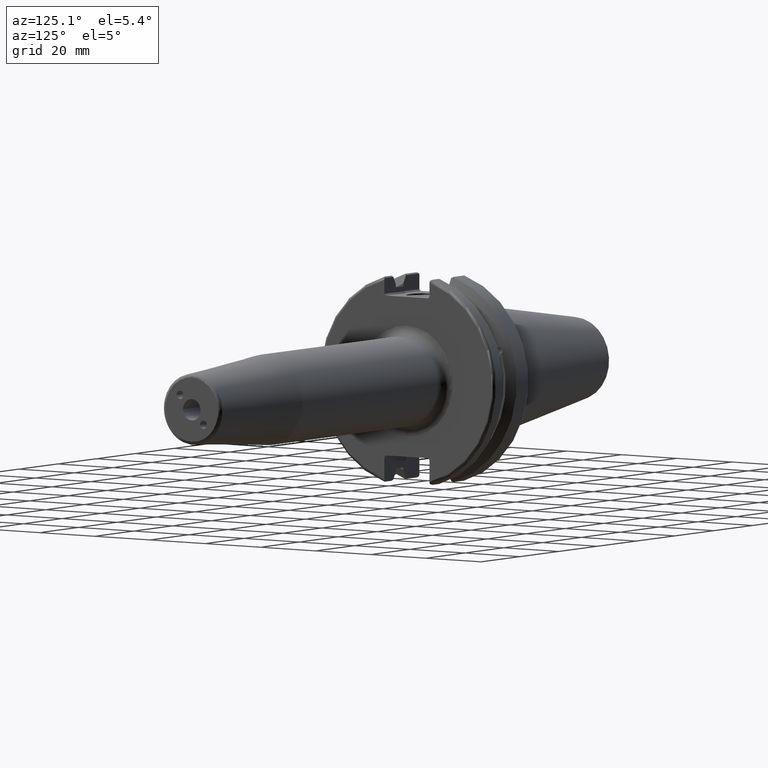
[diagram: clean part render]
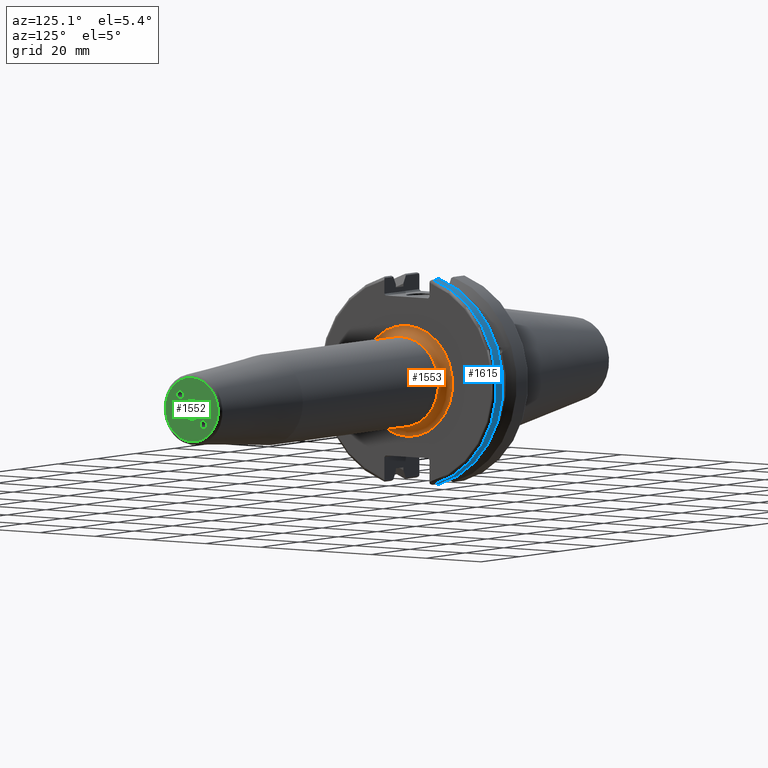
[diagram: same view with three faces highlighted in distinct colors, each labeled with its STEP entity id]
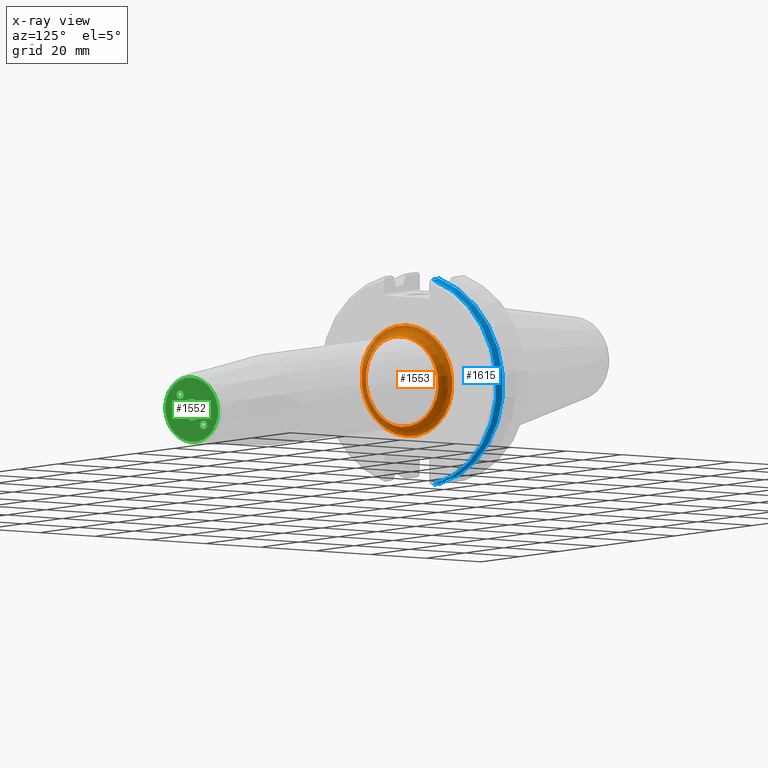
[diagram: x-ray of the same camera — body ghosted, the three highlighted faces saturated]
A machine part, auxiliary view with three faces highlighted in distinct colors.
The next image is the same camera in x-ray (body ghosted, the three faces saturated) — at least one of them is partly hidden behind the body in this view.
Their STEP definitions:

[orange] entity #1553 — the highlighted toroidal blend (fillet) surface has major radius 16.5 mm and minor (blend) radius 3 mm.
#120=TOROIDAL_SURFACE('',#1677,16.5,3.);
#184=FACE_OUTER_BOUND('',#278,.T.);
#278=EDGE_LOOP('',(#1077,#1078,#1079,#1080,#1081));
#581=CIRCLE('',#1678,13.5);
#582=CIRCLE('',#1679,3.);
#583=CIRCLE('',#1680,16.5);
#584=CIRCLE('',#1681,13.5);
#659=VERTEX_POINT('',#2353);
#660=VERTEX_POINT('',#2354);
#661=VERTEX_POINT('',#2356);
#823=EDGE_CURVE('',#659,#660,#581,.T.);
#824=EDGE_CURVE('',#660,#661,#582,.T.);
#825=EDGE_CURVE('',#661,#661,#583,.T.);
#826=EDGE_CURVE('',#660,#659,#584,.T.);
#1077=ORIENTED_EDGE('',*,*,#823,.T.);
#1078=ORIENTED_EDGE('',*,*,#824,.T.);
#1079=ORIENTED_EDGE('',*,*,#825,.T.);
#1080=ORIENTED_EDGE('',*,*,#824,.F.);
#1081=ORIENTED_EDGE('',*,*,#826,.T.);
#1553=ADVANCED_FACE('',(#184),#120,.F.);
#1677=AXIS2_PLACEMENT_3D('',#2352,#1887,#1888);
#1678=AXIS2_PLACEMENT_3D('',#2355,#1889,#1890);
#1679=AXIS2_PLACEMENT_3D('',#2357,#1891,#1892);
#1680=AXIS2_PLACEMENT_3D('',#2358,#1893,#1894);
#1681=AXIS2_PLACEMENT_3D('',#2359,#1895,#1896);
#1887=DIRECTION('center_axis',(-1.,0.,0.));
#1888=DIRECTION('ref_axis',(0.,0.,1.));
#1889=DIRECTION('center_axis',(-1.,0.,0.));
#1890=DIRECTION('ref_axis',(0.,-1.,-1.22464679914735E-16));
#1891=DIRECTION('center_axis',(0.,-1.,1.22464679914735E-16));
#1892=DIRECTION('ref_axis',(0.,-1.22464679914735E-16,-1.));
#1893=DIRECTION('center_axis',(1.,0.,0.));
#1894=DIRECTION('ref_axis',(0.,-1.,-1.22464679914735E-16));
#1895=DIRECTION('center_axis',(-1.,0.,0.));
#1896=DIRECTION('ref_axis',(0.,-1.,-1.22464679914735E-16));
#2352=CARTESIAN_POINT('Origin',(22.05,0.,0.));
#2353=CARTESIAN_POINT('',(22.05,-13.5,-1.65327317884893E-15));
#2354=CARTESIAN_POINT('',(22.05,-1.65327317884893E-15,-13.5));
#2355=CARTESIAN_POINT('Origin',(22.05,0.,0.));
#2356=CARTESIAN_POINT('',(19.05,-2.02066721859313E-15,-16.5));
#2357=CARTESIAN_POINT('Origin',(22.05,-2.02066721859313E-15,-16.5));
#2358=CARTESIAN_POINT('Origin',(19.05,0.,0.));
#2359=CARTESIAN_POINT('Origin',(22.05,0.,0.));

[blue] entity #1615 — the highlighted cylindrical surface (partial cylindrical patch) has radius 31.75 mm, axis along (1, 0, 0).
#170=CYLINDRICAL_SURFACE('',#1807,31.75);
#246=FACE_OUTER_BOUND('',#352,.T.);
#352=EDGE_LOOP('',(#1435,#1436,#1437,#1438));
#427=LINE('',#2830,#525);
#467=LINE('',#3060,#565);
#525=VECTOR('',#2118,10.);
#565=VECTOR('',#2232,10.);
#617=CIRCLE('',#1768,31.75);
#631=CIRCLE('',#1808,31.75);
#750=VERTEX_POINT('',#2804);
#751=VERTEX_POINT('',#2813);
#753=VERTEX_POINT('',#2826);
#798=VERTEX_POINT('',#3059);
#946=EDGE_CURVE('',#750,#751,#617,.T.);
#950=EDGE_CURVE('',#753,#750,#427,.T.);
#1023=EDGE_CURVE('',#751,#798,#467,.T.);
#1025=EDGE_CURVE('',#753,#798,#631,.T.);
#1435=ORIENTED_EDGE('',*,*,#946,.F.);
#1436=ORIENTED_EDGE('',*,*,#950,.F.);
#1437=ORIENTED_EDGE('',*,*,#1025,.T.);
#1438=ORIENTED_EDGE('',*,*,#1023,.F.);
#1615=ADVANCED_FACE('',(#246),#170,.T.);
#1768=AXIS2_PLACEMENT_3D('',#2814,#2113,#2114);
#1807=AXIS2_PLACEMENT_3D('',#3064,#2233,#2234);
#1808=AXIS2_PLACEMENT_3D('',#3065,#2235,#2236);
#2113=DIRECTION('center_axis',(1.,0.,0.));
#2114=DIRECTION('ref_axis',(0.,1.,-6.12323399573676E-17));
#2118=DIRECTION('',(1.,0.,0.));
#2232=DIRECTION('',(-1.,0.,0.));
#2233=DIRECTION('center_axis',(1.,0.,0.));
#2234=DIRECTION('ref_axis',(0.,1.,0.));
#2235=DIRECTION('center_axis',(1.,0.,0.));
#2236=DIRECTION('ref_axis',(0.,0.,-1.));
#2804=CARTESIAN_POINT('',(18.05,8.67204822802685,-30.5427254764662));
#2813=CARTESIAN_POINT('',(18.05,8.67204822802685,30.5427254764662));
#2814=CARTESIAN_POINT('Origin',(18.05,0.,0.));
#2826=CARTESIAN_POINT('',(14.7021667690756,8.67204822802685,-30.5427254764662));
#2830=CARTESIAN_POINT('',(16.8760833845378,8.67204822802685,-30.5427254764662));
#3059=CARTESIAN_POINT('',(14.7021667690756,8.67204822802685,30.5427254764662));
#3060=CARTESIAN_POINT('',(16.8760833845378,8.67204822802685,30.5427254764662));
#3064=CARTESIAN_POINT('Origin',(16.8760833845378,0.,0.));
#3065=CARTESIAN_POINT('Origin',(14.7021667690756,0.,0.));

[green] entity #1552 — the highlighted planar face has unit normal (1, 0, 0).
#63=FACE_BOUND('',#275,.T.);
#64=FACE_BOUND('',#276,.T.);
#65=FACE_BOUND('',#277,.T.);
#81=PLANE('',#1675);
#127=ELLIPSE('',#1663,1.2302494347154,1.2295);
#128=ELLIPSE('',#1667,1.2302494347154,1.2295);
#183=FACE_OUTER_BOUND('',#274,.T.);
#274=EDGE_LOOP('',(#1073));
#275=EDGE_LOOP('',(#1074));
#276=EDGE_LOOP('',(#1075));
#277=EDGE_LOOP('',(#1076));
#575=CIRCLE('',#1669,9.57560950834179);
#580=CIRCLE('',#1676,3.175);
#650=VERTEX_POINT('',#2325);
#653=VERTEX_POINT('',#2334);
#654=VERTEX_POINT('',#2338);
#658=VERTEX_POINT('',#2350);
#810=EDGE_CURVE('',#650,#650,#127,.T.);
#814=EDGE_CURVE('',#653,#653,#128,.T.);
#816=EDGE_CURVE('',#654,#654,#575,.T.);
#822=EDGE_CURVE('',#658,#658,#580,.T.);
#1073=ORIENTED_EDGE('',*,*,#816,.F.);
#1074=ORIENTED_EDGE('',*,*,#810,.T.);
#1075=ORIENTED_EDGE('',*,*,#814,.T.);
#1076=ORIENTED_EDGE('',*,*,#822,.F.);
#1552=ADVANCED_FACE('',(#183,#63,#64,#65),#81,.T.);
#1663=AXIS2_PLACEMENT_3D('',#2326,#1855,#1856);
#1667=AXIS2_PLACEMENT_3D('',#2335,#1865,#1866);
#1669=AXIS2_PLACEMENT_3D('',#2339,#1870,#1871);
#1675=AXIS2_PLACEMENT_3D('',#2349,#1883,#1884);
#1676=AXIS2_PLACEMENT_3D('',#2351,#1885,#1886);
#1855=DIRECTION('center_axis',(-1.,0.,0.));
#1856=DIRECTION('ref_axis',(0.,-0.707106781186452,0.707106781186643));
#1865=DIRECTION('center_axis',(-1.,0.,0.));
#1866=DIRECTION('ref_axis',(0.,0.707106781186452,-0.707106781186643));
#1870=DIRECTION('center_axis',(-1.,0.,0.));
#1871=DIRECTION('ref_axis',(0.,-1.,1.83697019872103E-16));
#1883=DIRECTION('center_axis',(1.,0.,0.));
#1884=DIRECTION('ref_axis',(0.,0.,-1.));
#1885=DIRECTION('center_axis',(1.,0.,0.));
#1886=DIRECTION('ref_axis',(0.,0.,-1.));
#2325=CARTESIAN_POINT('',(130.,-3.01276591267728,4.24189125243867));
#2326=CARTESIAN_POINT('Origin',(130.,-4.24264068711929,4.24264068711929));
#2334=CARTESIAN_POINT('',(130.,3.01276591267728,-4.24189125243867));
#2335=CARTESIAN_POINT('Origin',(130.,4.24264068711929,-4.24264068711929));
#2338=CARTESIAN_POINT('',(130.,-1.17267395342757E-15,9.57560950834179));
#2339=CARTESIAN_POINT('Origin',(130.,0.,0.));
#2349=CARTESIAN_POINT('Origin',(130.,3.175,0.));
#2350=CARTESIAN_POINT('',(130.,-3.175,-3.88825358729285E-16));
#2351=CARTESIAN_POINT('Origin',(130.,0.,0.));